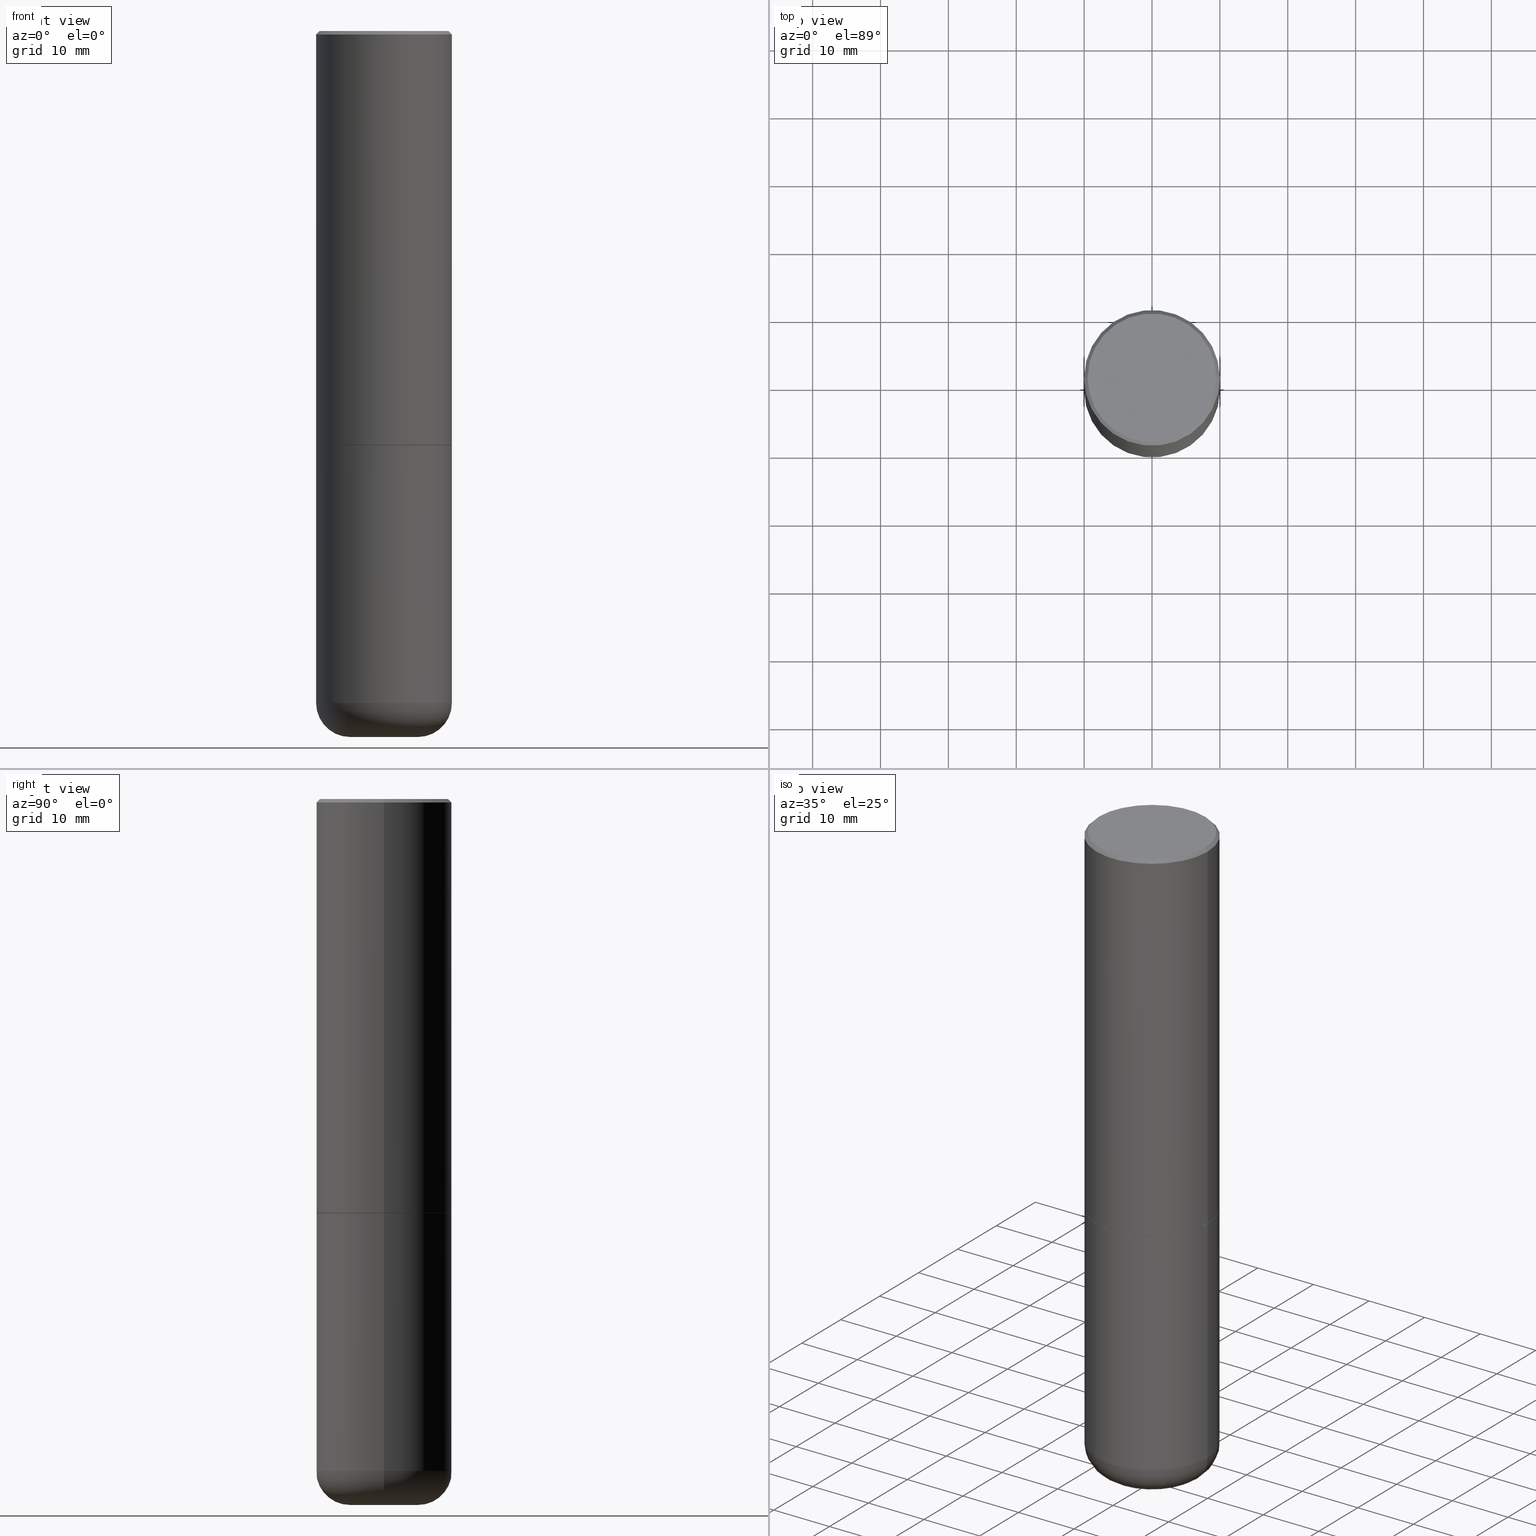
[diagram: canonical four-view strip — front | top / right | iso, engineering-drawing reading convention]
A machine part, canonical four-view strip (front | top / right | iso — engineering-drawing reading convention). The complete STEP part file that produces these views, byte-faithful:
ISO-10303-21;
HEADER;
FILE_DESCRIPTION (( 'STEP AP203' ),
    '1' );
FILE_NAME ('47060.STEP',
    '2024-03-05T16:22:17',
    ( '' ),
    ( '' ),
    'SwSTEP 2.0',
    'SolidWorks 2023',
    '' );
FILE_SCHEMA (( 'CONFIG_CONTROL_DESIGN' ));
ENDSEC;

DATA;
#1 = ORIENTED_EDGE ( 'NONE', *, *, #33, .T. ) ;
#2 = ORIENTED_EDGE ( 'NONE', *, *, #145, .T. ) ;
#3 = EDGE_LOOP ( 'NONE', ( #75, #335 ) ) ;
#4 = DATE_AND_TIME ( #44, #378 ) ;
#5 = CARTESIAN_POINT ( 'NONE',  ( 9.531459218987190195E-29, -1.360839766627504578E-14, -3.897600000000000620 ) ) ;
#6 = FACE_OUTER_BOUND ( 'NONE', #120, .T. ) ;
#7 = ORIENTED_EDGE ( 'NONE', *, *, #252, .T. ) ;
#8 = VECTOR ( 'NONE', #408, 39.37007874015748143 ) ;
#9 = CONICAL_SURFACE ( 'NONE', #330, 0.3926999999999999935, 0.7853981633972775267 ) ;
#10 = CARTESIAN_POINT ( 'NONE',  ( -0.3937000000000001609, 2.797406750687515575E-15, -1.936584745033357296E-29 ) ) ;
#11 = PERSON_AND_ORGANIZATION ( #346, #128 ) ;
#12 = DIRECTION ( 'NONE',  ( 1.000000000000000000, -6.982962677686266711E-15, 4.876176775795935793E-29 ) ) ;
#13 = DIRECTION ( 'NONE',  ( 0.7071067811865467956, -7.319954787623254468E-15, -0.7071067811865482389 ) ) ;
#14 = EDGE_LOOP ( 'NONE', ( #221, #2, #262, #351 ) ) ;
#15 = DATE_AND_TIME ( #81, #104 ) ;
#16 = ADVANCED_FACE ( 'NONE', ( #260 ), #267, .T. ) ;
#17 = AXIS2_PLACEMENT_3D ( 'NONE', #79, #168, #321 ) ;
#18 = VECTOR ( 'NONE', #338, 39.37007874015748143 ) ;
#19 = CARTESIAN_POINT ( 'NONE',  ( -0.3937000000000000499, -8.199362874132856734E-15, -2.401600000000000179 ) ) ;
#20 = DIRECTION ( 'NONE',  ( -2.445468806185136597E-29, 3.491481338843145583E-15, 1.000000000000000000 ) ) ;
#21 = DIRECTION ( 'NONE',  ( 2.445468806185136597E-29, -3.491481338843145583E-15, -1.000000000000000000 ) ) ;
#22 = APPLICATION_PROTOCOL_DEFINITION ( 'international standard', 'config_control_design', 1994, #144 ) ;
#23 = VERTEX_POINT ( 'NONE', #234 ) ;
#24 = DIRECTION ( 'NONE',  ( -2.445468806185136877E-29, 3.491481338843145188E-15, 1.000000000000000000 ) ) ;
#25 = VECTOR ( 'NONE', #24, 39.37007874015748143 ) ;
#26 = ORIENTED_EDGE ( 'NONE', *, *, #171, .F. ) ;
#27 = CC_DESIGN_APPROVAL ( #60, ( #66 ) ) ;
#28 = ORIENTED_EDGE ( 'NONE', *, *, #214, .F. ) ;
#29 = ORIENTED_EDGE ( 'NONE', *, *, #392, .T. ) ;
#30 = DIRECTION ( 'NONE',  ( -1.000000000000000000, 6.982962677686265922E-15, -4.876176775795935793E-29 ) ) ;
#31 = DIRECTION ( 'NONE',  ( -2.445468806185136597E-29, 3.491481338843145583E-15, 1.000000000000000000 ) ) ;
#32 = APPROVAL_STATUS ( 'not_yet_approved' ) ;
#33 = EDGE_CURVE ( 'NONE', #280, #196, #186, .T. ) ;
#34 = PRODUCT_DEFINITION ( 'UNKNOWN', '', #286, #68 ) ;
#35 = ORIENTED_EDGE ( 'NONE', *, *, #353, .F. ) ;
#36 = TOROIDAL_SURFACE ( 'NONE', #97, 0.1968000000000000305, 0.1968999999999998807 ) ;
#37 = COORDINATED_UNIVERSAL_TIME_OFFSET ( 5, 0, .BEHIND. ) ;
#38 = EDGE_CURVE ( 'NONE', #67, #43, #109, .T. ) ;
#39 = ORIENTED_EDGE ( 'NONE', *, *, #55, .T. ) ;
#40 = DIRECTION ( 'NONE',  ( -2.445468806185136597E-29, 3.491481338843145583E-15, 1.000000000000000000 ) ) ;
#41 = LINE ( 'NONE', #52, #345 ) ;
#42 = CARTESIAN_POINT ( 'NONE',  ( 0.000000000000000000, 0.000000000000000000, 0.000000000000000000 ) ) ;
#43 = VERTEX_POINT ( 'NONE', #245 ) ;
#44 = CALENDAR_DATE ( 2024, 5, 3 ) ;
#45 = PLANE ( 'NONE',  #249 ) ;
#46 = VERTEX_POINT ( 'NONE', #19 ) ;
#47 = LINE ( 'NONE', #181, #165 ) ;
#48 = DIRECTION ( 'NONE',  ( 2.438088387897960049E-29, -3.491481338843145188E-15, -1.000000000000000000 ) ) ;
#49 = CONICAL_SURFACE ( 'NONE', #223, 0.3926999999999999935, 0.7853981633972775267 ) ;
#50 = TOROIDAL_SURFACE ( 'NONE', #410, 0.1968000000000000305, 0.1968999999999998807 ) ;
#51 = AXIS2_PLACEMENT_3D ( 'NONE', #393, #364, #290 ) ;
#52 = CARTESIAN_POINT ( 'NONE',  ( -0.3926999999999999935, -5.594840260035786640E-15, -2.401600000000000623 ) ) ;
#53 = CARTESIAN_POINT ( 'NONE',  ( 1.001297202692504215E-28, -1.429587034189326149E-14, -4.094500000000000028 ) ) ;
#54 = DIRECTION ( 'NONE',  ( -2.445468806185136597E-29, 3.491481338843145583E-15, 1.000000000000000000 ) ) ;
#55 = EDGE_CURVE ( 'NONE', #231, #182, #302, .T. ) ;
#56 = AXIS2_PLACEMENT_3D ( 'NONE', #332, #402, #12 ) ;
#57 = DIRECTION ( 'NONE',  ( 1.000000000000000000, -6.982962677686269077E-15, 4.883557194083114022E-29 ) ) ;
#58 = CARTESIAN_POINT ( 'NONE',  ( 9.531459218987190195E-29, -1.360839766627504578E-14, -3.897600000000000620 ) ) ;
#59 = FACE_OUTER_BOUND ( 'NONE', #362, .T. ) ;
#60 = APPROVAL ( #412, 'UNSPECIFIED' ) ;
#61 = CARTESIAN_POINT ( 'NONE',  ( 4.890937612370294178E-31, -6.982962677686321191E-17, -0.02000000000000008715 ) ) ;
#62 = DIRECTION ( 'NONE',  ( 1.000000000000000000, -6.982962677686265133E-15, 0.000000000000000000 ) ) ;
#63 = CARTESIAN_POINT ( 'NONE',  ( -0.3937000000000003830, -1.428333113714341032E-15, -2.400600000000000289 ) ) ;
#64 = EDGE_LOOP ( 'NONE', ( #270, #228, #157, #314 ) ) ;
#65 = CIRCLE ( 'NONE', #217, 0.3937000000000002720 ) ;
#66 = SECURITY_CLASSIFICATION ( '', '', #389 ) ;
#67 = VERTEX_POINT ( 'NONE', #403 ) ;
#68 = DESIGN_CONTEXT ( 'detailed design', #167, 'design' ) ;
#69 = PLANE ( 'NONE',  #348 ) ;
#70 = AXIS2_PLACEMENT_3D ( 'NONE', #344, #366, #340 ) ;
#71 = DIRECTION ( 'NONE',  ( -2.445468806185136877E-29, 3.491481338843145188E-15, 1.000000000000000000 ) ) ;
#72 = ORIENTED_EDGE ( 'NONE', *, *, #313, .F. ) ;
#73 = UNCERTAINTY_MEASURE_WITH_UNIT (LENGTH_MEASURE( 1.000000000000000082E-05 ), #247, 'distance_accuracy_value', 'NONE');
#74 = VERTEX_POINT ( 'NONE', #63 ) ;
#75 = ORIENTED_EDGE ( 'NONE', *, *, #96, .F. ) ;
#76 = CYLINDRICAL_SURFACE ( 'NONE', #363, 0.3937000000000000499 ) ;
#77 = AXIS2_PLACEMENT_3D ( 'NONE', #42, #185, #129 ) ;
#78 = PERSON_AND_ORGANIZATION_ROLE ( 'creator' ) ;
#79 = CARTESIAN_POINT ( 'NONE',  ( 9.531459218987190195E-29, -1.360839766627504578E-14, -3.897600000000000620 ) ) ;
#80 = EDGE_CURVE ( 'NONE', #256, #23, #142, .T. ) ;
#81 = CALENDAR_DATE ( 2024, 5, 3 ) ;
#82 = ORIENTED_EDGE ( 'NONE', *, *, #240, .T. ) ;
#83 = EDGE_LOOP ( 'NONE', ( #414, #184, #39, #219 ) ) ;
#84 = APPROVAL_DATE_TIME ( #4, #305 ) ;
#85 = ORIENTED_EDGE ( 'NONE', *, *, #328, .F. ) ;
#86 = DIRECTION ( 'NONE',  ( -2.445468806185136597E-29, 3.491481338843145583E-15, 1.000000000000000000 ) ) ;
#87 = ORIENTED_EDGE ( 'NONE', *, *, #152, .F. ) ;
#88 = CC_DESIGN_SECURITY_CLASSIFICATION ( #66, ( #286 ) ) ;
#89 = EDGE_CURVE ( 'NONE', #163, #231, #401, .T. ) ;
#90 = ORIENTED_EDGE ( 'NONE', *, *, #220, .T. ) ;
#91 = DIRECTION ( 'NONE',  ( 1.000000000000000000, -6.982962677686265922E-15, 0.000000000000000000 ) ) ;
#92 = VECTOR ( 'NONE', #71, 39.37007874015748143 ) ;
#93 = CONICAL_SURFACE ( 'NONE', #281, 0.3937000000000000499, 0.7853981633974472798 ) ;
#94 = CARTESIAN_POINT ( 'NONE',  ( 0.000000000000000000, 0.000000000000000000, 0.000000000000000000 ) ) ;
#95 = PERSON_AND_ORGANIZATION ( #346, #128 ) ;
#96 = EDGE_CURVE ( 'NONE', #383, #280, #400, .T. ) ;
#97 = AXIS2_PLACEMENT_3D ( 'NONE', #5, #146, #298 ) ;
#98 = APPROVAL_DATE_TIME ( #133, #60 ) ;
#99 = EDGE_CURVE ( 'NONE', #108, #172, #177, .T. ) ;
#100 = DIRECTION ( 'NONE',  ( 1.000000000000000000, -6.982962677686265922E-15, 0.000000000000000000 ) ) ;
#101 = CARTESIAN_POINT ( 'NONE',  ( 5.873037884934224349E-29, -8.385141583365698841E-15, -2.401600000000000179 ) ) ;
#102 = ADVANCED_BREP_SHAPE_REPRESENTATION ( '47060', ( #242, #377, #224 ), #239 ) ;
#103 = CIRCLE ( 'NONE', #17, 0.3937000000000000499 ) ;
#104 = LOCAL_TIME ( 11, 22, 17.00000000000000000, #359 ) ;
#105 = CYLINDRICAL_SURFACE ( 'NONE', #77, 0.3937000000000000499 ) ;
#106 = ORIENTED_EDGE ( 'NONE', *, *, #304, .T. ) ;
#107 = CARTESIAN_POINT ( 'NONE',  ( 5.873037884934225470E-29, -8.385141583365700419E-15, -2.401600000000000623 ) ) ;
#108 = VERTEX_POINT ( 'NONE', #337 ) ;
#109 = LINE ( 'NONE', #160, #25 ) ;
#110 = DIRECTION ( 'NONE',  ( 1.000000000000000000, -6.982962677686268288E-15, 0.000000000000000000 ) ) ;
#111 = FACE_OUTER_BOUND ( 'NONE', #179, .T. ) ;
#112 = DIRECTION ( 'NONE',  ( -2.445468806185136597E-29, 3.491481338843145583E-15, 1.000000000000000000 ) ) ;
#113 = PERSON_AND_ORGANIZATION_ROLE ( 'classification_officer' ) ;
#114 = ADVANCED_FACE ( 'NONE', ( #59 ), #418, .T. ) ;
#115 = FACE_OUTER_BOUND ( 'NONE', #199, .T. ) ;
#116 = AXIS2_PLACEMENT_3D ( 'NONE', #61, #158, #100 ) ;
#117 = ORIENTED_EDGE ( 'NONE', *, *, #99, .F. ) ;
#118 = ADVANCED_FACE ( 'NONE', ( #404 ), #45, .F. ) ;
#119 = FACE_OUTER_BOUND ( 'NONE', #349, .T. ) ;
#120 = EDGE_LOOP ( 'NONE', ( #209, #7, #288, #237 ) ) ;
#121 = FACE_OUTER_BOUND ( 'NONE', #236, .T. ) ;
#122 = AXIS2_PLACEMENT_3D ( 'NONE', #387, #112, #62 ) ;
#123 = CARTESIAN_POINT ( 'NONE',  ( -0.3936999999999999389, -1.081099091558753178E-14, -3.897600000000000620 ) ) ;
#124 = FACE_OUTER_BOUND ( 'NONE', #14, .T. ) ;
#125 =( LENGTH_UNIT ( ) NAMED_UNIT ( * ) SI_UNIT ( $, .METRE. ) );
#126 = DIRECTION ( 'NONE',  ( 1.000000000000000000, -6.982962677686269077E-15, 0.000000000000000000 ) ) ;
#127 = AXIS2_PLACEMENT_3D ( 'NONE', #58, #54, #213 ) ;
#128 = ORGANIZATION ( 'UNSPECIFIED', 'UNSPECIFIED', '' ) ;
#129 = DIRECTION ( 'NONE',  ( 1.000000000000000000, -6.982962677686265922E-15, 4.876176775795935793E-29 ) ) ;
#130 = ORIENTED_EDGE ( 'NONE', *, *, #304, .F. ) ;
#131 = AXIS2_PLACEMENT_3D ( 'NONE', #273, #336, #154 ) ;
#132 = CC_DESIGN_APPROVAL ( #305, ( #286 ) ) ;
#133 = DATE_AND_TIME ( #164, #254 ) ;
#134 = CC_DESIGN_PERSON_AND_ORGANIZATION_ASSIGNMENT ( #341, #375, ( #312 ) ) ;
#135 = ORIENTED_EDGE ( 'NONE', *, *, #80, .F. ) ;
#136 = CIRCLE ( 'NONE', #283, 0.1968999999999999084 ) ;
#137 = DIRECTION ( 'NONE',  ( -2.445468806185136597E-29, 3.491481338843145583E-15, 1.000000000000000000 ) ) ;
#138 = PERSON_AND_ORGANIZATION ( #346, #128 ) ;
#139 = CARTESIAN_POINT ( 'NONE',  ( 1.001297202692504215E-28, -1.429587034189326149E-14, -4.094500000000000028 ) ) ;
#140 = DIRECTION ( 'NONE',  ( 1.000000000000000000, -6.982962677686266711E-15, 4.876176775795935793E-29 ) ) ;
#141 = DIRECTION ( 'NONE',  ( -2.445468806185136597E-29, 3.491481338843145583E-15, 1.000000000000000000 ) ) ;
#142 = CIRCLE ( 'NONE', #159, 0.3926999999999999935 ) ;
#143 = COORDINATED_UNIVERSAL_TIME_OFFSET ( 5, 0, .BEHIND. ) ;
#144 = APPLICATION_CONTEXT ( 'configuration controlled 3d designs of mechanical parts and assemblies' ) ;
#145 = EDGE_CURVE ( 'NONE', #196, #46, #175, .T. ) ;
#146 = DIRECTION ( 'NONE',  ( -2.445468806185136597E-29, 3.491481338843145583E-15, 1.000000000000000000 ) ) ;
#147 = DIRECTION ( 'NONE',  ( -2.445468806185136877E-29, 3.491481338843145188E-15, 1.000000000000000000 ) ) ;
#148 = EDGE_CURVE ( 'NONE', #196, #67, #103, .T. ) ;
#149 = DIRECTION ( 'NONE',  ( -1.000000000000000000, 6.982962677686265922E-15, 0.000000000000000000 ) ) ;
#150 = VECTOR ( 'NONE', #227, 39.37007874015748143 ) ;
#151 = CARTESIAN_POINT ( 'NONE',  ( 0.3937000000000001609, -2.749192406205084400E-15, 1.919750796630860732E-29 ) ) ;
#152 = EDGE_CURVE ( 'NONE', #23, #256, #200, .T. ) ;
#153 = ADVANCED_FACE ( 'NONE', ( #293 ), #50, .T. ) ;
#154 = DIRECTION ( 'NONE',  ( 1.000000000000000000, -6.982962677686265133E-15, 0.000000000000000000 ) ) ;
#155 = DIRECTION ( 'NONE',  ( 1.000000000000000000, -6.982962677686265922E-15, 0.000000000000000000 ) ) ;
#156 = DIRECTION ( 'NONE',  ( 1.000000000000000000, -6.982962677686265922E-15, 0.000000000000000000 ) ) ;
#157 = ORIENTED_EDGE ( 'NONE', *, *, #89, .T. ) ;
#158 = DIRECTION ( 'NONE',  ( -2.445468806185136597E-29, 3.491481338843145583E-15, 1.000000000000000000 ) ) ;
#159 = AXIS2_PLACEMENT_3D ( 'NONE', #301, #373, #282 ) ;
#160 = CARTESIAN_POINT ( 'NONE',  ( 0.3937000000000000499, -2.749192406205083217E-15, 1.919750796630860172E-29 ) ) ;
#161 = ADVANCED_FACE ( 'NONE', ( #6 ), #215, .T. ) ;
#162 = ORIENTED_EDGE ( 'NONE', *, *, #96, .T. ) ;
#163 = VERTEX_POINT ( 'NONE', #339 ) ;
#164 = CALENDAR_DATE ( 2024, 5, 3 ) ;
#165 = VECTOR ( 'NONE', #13, 39.37007874015748143 ) ;
#166 = APPROVAL_ROLE ( '' ) ;
#167 = APPLICATION_CONTEXT ( 'configuration controlled 3d designs of mechanical parts and assemblies' ) ;
#168 = DIRECTION ( 'NONE',  ( -2.445468806185136597E-29, 3.491481338843145583E-15, 1.000000000000000000 ) ) ;
#169 = ORIENTED_EDGE ( 'NONE', *, *, #220, .F. ) ;
#170 = AXIS2_PLACEMENT_3D ( 'NONE', #274, #333, #155 ) ;
#171 = EDGE_CURVE ( 'NONE', #46, #43, #294, .T. ) ;
#172 = VERTEX_POINT ( 'NONE', #275 ) ;
#173 = DIRECTION ( 'NONE',  ( 1.000000000000000000, -6.982962677686268288E-15, 0.000000000000000000 ) ) ;
#174 = DIRECTION ( 'NONE',  ( 2.445468806185136597E-29, -3.491481338843145583E-15, -1.000000000000000000 ) ) ;
#175 = LINE ( 'NONE', #356, #92 ) ;
#176 = CARTESIAN_POINT ( 'NONE',  ( -0.1968000000000000305, -1.221004956229916800E-14, -3.897600000000000620 ) ) ;
#177 = CIRCLE ( 'NONE', #70, 0.3736999999999997546 ) ;
#178 = DIRECTION ( 'NONE',  ( -1.000000000000000000, 6.982962677686265922E-15, -4.876176775795935793E-29 ) ) ;
#179 = EDGE_LOOP ( 'NONE', ( #255, #322, #193, #26 ) ) ;
#180 =( NAMED_UNIT ( * ) SI_UNIT ( $, .STERADIAN. ) SOLID_ANGLE_UNIT ( ) );
#181 = CARTESIAN_POINT ( 'NONE',  ( 0.3937000000000000499, -2.770807688499515734E-15, -0.02000000000000008715 ) ) ;
#182 = VERTEX_POINT ( 'NONE', #266 ) ;
#183 = CARTESIAN_POINT ( 'NONE',  ( 0.1968000000000000305, -1.498264472124370230E-14, -3.897600000000000620 ) ) ;
#184 = ORIENTED_EDGE ( 'NONE', *, *, #353, .T. ) ;
#185 = DIRECTION ( 'NONE',  ( -2.445468806185136597E-29, 3.491481338843145583E-15, 1.000000000000000000 ) ) ;
#186 = CIRCLE ( 'NONE', #370, 0.1968999999999999084 ) ;
#187 = AXIS2_PLACEMENT_3D ( 'NONE', #139, #258, #230 ) ;
#188 = CARTESIAN_POINT ( 'NONE',  ( 5.870592416128038746E-29, -8.381650102026855834E-15, -2.400600000000000289 ) ) ;
#189 = CARTESIAN_POINT ( 'NONE',  ( 4.890937612370294178E-31, -6.982962677686321191E-17, -0.02000000000000008715 ) ) ;
#190 = DIRECTION ( 'NONE',  ( 0.000000000000000000, 0.000000000000000000, 1.000000000000000000 ) ) ;
#191 = ORIENTED_EDGE ( 'NONE', *, *, #152, .T. ) ;
#192 = EDGE_CURVE ( 'NONE', #67, #196, #225, .T. ) ;
#193 = ORIENTED_EDGE ( 'NONE', *, *, #38, .T. ) ;
#194 = APPROVAL ( #32, 'UNSPECIFIED' ) ;
#195 = CLOSED_SHELL ( 'NONE', ( #291, #161, #367, #114, #16, #406, #118, #384 ) ) ;
#196 = VERTEX_POINT ( 'NONE', #123 ) ;
#197 = SHAPE_DEFINITION_REPRESENTATION ( #248, #102 ) ;
#198 = DIRECTION ( 'NONE',  ( 2.438088387897960049E-29, -3.491481338843145188E-15, -1.000000000000000000 ) ) ;
#199 = EDGE_LOOP ( 'NONE', ( #162, #1, #311, #130 ) ) ;
#200 = CIRCLE ( 'NONE', #381, 0.3926999999999999935 ) ;
#201 = FACE_OUTER_BOUND ( 'NONE', #83, .T. ) ;
#202 = DIRECTION ( 'NONE',  ( 1.000000000000000000, -6.982962677686265922E-15, 4.876176775795935793E-29 ) ) ;
#203 = APPROVAL_STATUS ( 'not_yet_approved' ) ;
#204 = FACE_OUTER_BOUND ( 'NONE', #3, .T. ) ;
#205 = PERSON_AND_ORGANIZATION ( #346, #128 ) ;
#206 = CIRCLE ( 'NONE', #309, 0.3937000000000002720 ) ;
#207 = APPROVAL_PERSON_ORGANIZATION ( #352, #305, #289 ) ;
#208 = DIRECTION ( 'NONE',  ( 1.000000000000000000, -6.982962677686268288E-15, 0.000000000000000000 ) ) ;
#209 = ORIENTED_EDGE ( 'NONE', *, *, #214, .T. ) ;
#210 = APPROVAL_ROLE ( '' ) ;
#211 = CARTESIAN_POINT ( 'NONE',  ( 0.3926999999999999935, -1.112735102689309762E-14, -2.401600000000000623 ) ) ;
#212 = CARTESIAN_POINT ( 'NONE',  ( 5.870592416128038746E-29, -8.381650102026855834E-15, -2.400600000000000289 ) ) ;
#213 = DIRECTION ( 'NONE',  ( 1.000000000000000000, -6.982962677686267499E-15, 0.000000000000000000 ) ) ;
#214 = EDGE_CURVE ( 'NONE', #163, #74, #65, .T. ) ;
#215 = CYLINDRICAL_SURFACE ( 'NONE', #56, 0.3937000000000001609 ) ;
#216 = DIRECTION ( 'NONE',  ( -6.982962677686266711E-15, -1.000000000000000000, 3.491481338843145583E-15 ) ) ;
#217 = AXIS2_PLACEMENT_3D ( 'NONE', #188, #20, #156 ) ;
#218 = CARTESIAN_POINT ( 'NONE',  ( 1.001297202692504215E-28, -1.429587034189326149E-14, -4.094500000000000028 ) ) ;
#219 = ORIENTED_EDGE ( 'NONE', *, *, #413, .F. ) ;
#220 = EDGE_CURVE ( 'NONE', #23, #163, #397, .T. ) ;
#221 = ORIENTED_EDGE ( 'NONE', *, *, #192, .T. ) ;
#222 = DIRECTION ( 'NONE',  ( -2.445468806185136597E-29, 3.491481338843145583E-15, 1.000000000000000000 ) ) ;
#223 = AXIS2_PLACEMENT_3D ( 'NONE', #361, #86, #208 ) ;
#224 = AXIS2_PLACEMENT_3D ( 'NONE', #94, #190, #306 ) ;
#225 = CIRCLE ( 'NONE', #127, 0.3937000000000000499 ) ;
#226 = CIRCLE ( 'NONE', #243, 0.3736999999999997546 ) ;
#227 = DIRECTION ( 'NONE',  ( 0.7071067811864267805, -2.468850131080992517E-15, 0.7071067811866682540 ) ) ;
#228 = ORIENTED_EDGE ( 'NONE', *, *, #313, .T. ) ;
#229 = CARTESIAN_POINT ( 'NONE',  ( 5.873037884934225470E-29, -8.385141583365698841E-15, -2.401600000000000623 ) ) ;
#230 = DIRECTION ( 'NONE',  ( 1.000000000000000000, -6.982962677686269866E-15, 0.000000000000000000 ) ) ;
#231 = VERTEX_POINT ( 'NONE', #350 ) ;
#232 = CARTESIAN_POINT ( 'NONE',  ( -0.3937000000000000499, 2.679362779428219918E-15, -0.02000000000000008715 ) ) ;
#233 = CC_DESIGN_PERSON_AND_ORGANIZATION_ASSIGNMENT ( #11, #78, ( #286 ) ) ;
#234 = CARTESIAN_POINT ( 'NONE',  ( 0.3926999999999999935, -1.112735102689309762E-14, -2.401600000000000623 ) ) ;
#235 = CARTESIAN_POINT ( 'NONE',  ( 4.890937612370294178E-31, -6.982962677686321191E-17, -0.02000000000000008715 ) ) ;
#236 = EDGE_LOOP ( 'NONE', ( #386, #372 ) ) ;
#237 = ORIENTED_EDGE ( 'NONE', *, *, #89, .F. ) ;
#238 = PLANE ( 'NONE',  #51 ) ;
#239 =( GEOMETRIC_REPRESENTATION_CONTEXT ( 3 ) GLOBAL_UNCERTAINTY_ASSIGNED_CONTEXT ( ( #73 ) ) GLOBAL_UNIT_ASSIGNED_CONTEXT ( ( #247, #268, #180 ) ) REPRESENTATION_CONTEXT ( 'NONE', 'WORKASPACE' ) );
#240 = EDGE_CURVE ( 'NONE', #43, #46, #261, .T. ) ;
#241 = ADVANCED_FACE ( 'NONE', ( #379 ), #69, .F. ) ;
#242 = MANIFOLD_SOLID_BREP ( 'Body-Move/Copy2[1]', #354 ) ;
#243 = AXIS2_PLACEMENT_3D ( 'NONE', #251, #409, #415 ) ;
#244 = PRODUCT_RELATED_PRODUCT_CATEGORY ( 'detail', '', ( #312 ) ) ;
#245 = CARTESIAN_POINT ( 'NONE',  ( 0.3937000000000000499, -1.113433398957078206E-14, -2.401600000000000179 ) ) ;
#246 = MECHANICAL_CONTEXT ( 'NONE', #144, 'mechanical' ) ;
#247 =( CONVERSION_BASED_UNIT ( 'INCH', #369 ) LENGTH_UNIT ( ) NAMED_UNIT ( #368 ) );
#248 = PRODUCT_DEFINITION_SHAPE ( 'NONE', 'NONE',  #34 ) ;
#249 = AXIS2_PLACEMENT_3D ( 'NONE', #229, #324, #202 ) ;
#250 = ADVANCED_FACE ( 'NONE', ( #204 ), #326, .T. ) ;
#251 = CARTESIAN_POINT ( 'NONE',  ( -5.428027354543142984E-45, 7.749784485978325769E-31, 2.219626494852213988E-16 ) ) ;
#252 = EDGE_CURVE ( 'NONE', #74, #182, #297, .T. ) ;
#253 = AXIS2_PLACEMENT_3D ( 'NONE', #189, #21, #278 ) ;
#254 = LOCAL_TIME ( 11, 22, 17.00000000000000000, #365 ) ;
#255 = ORIENTED_EDGE ( 'NONE', *, *, #145, .F. ) ;
#256 = VERTEX_POINT ( 'NONE', #264 ) ;
#257 = PERSON_AND_ORGANIZATION_ROLE ( 'design_supplier' ) ;
#258 = DIRECTION ( 'NONE',  ( -2.445468806185136597E-29, 3.491481338843145583E-15, 1.000000000000000000 ) ) ;
#259 = CARTESIAN_POINT ( 'NONE',  ( 9.531459218987190195E-29, -1.360839766627504578E-14, -3.897600000000000620 ) ) ;
#260 = FACE_OUTER_BOUND ( 'NONE', #64, .T. ) ;
#261 = CIRCLE ( 'NONE', #122, 0.3937000000000000499 ) ;
#262 = ORIENTED_EDGE ( 'NONE', *, *, #240, .F. ) ;
#263 = DATE_AND_TIME ( #320, #355 ) ;
#264 = CARTESIAN_POINT ( 'NONE',  ( -0.3926999999999999935, -5.589541805687562660E-15, -2.401600000000000623 ) ) ;
#265 = COORDINATED_UNIVERSAL_TIME_OFFSET ( 5, 0, .BEHIND. ) ;
#266 = CARTESIAN_POINT ( 'NONE',  ( -0.3937000000000000499, 2.679362779428219918E-15, -0.02000000000000008715 ) ) ;
#267 = CYLINDRICAL_SURFACE ( 'NONE', #285, 0.3937000000000001609 ) ;
#268 =( NAMED_UNIT ( * ) PLANE_ANGLE_UNIT ( ) SI_UNIT ( $, .RADIAN. ) );
#269 = CARTESIAN_POINT ( 'NONE',  ( 0.000000000000000000, 0.000000000000000000, 0.000000000000000000 ) ) ;
#270 = ORIENTED_EDGE ( 'NONE', *, *, #252, .F. ) ;
#271 = PERSON_AND_ORGANIZATION ( #346, #128 ) ;
#272 = LINE ( 'NONE', #232, #18 ) ;
#273 = CARTESIAN_POINT ( 'NONE',  ( 5.873037884934224349E-29, -8.385141583365698841E-15, -2.401600000000000179 ) ) ;
#274 = CARTESIAN_POINT ( 'NONE',  ( 4.890937612370294178E-31, -6.982962677686321191E-17, -0.02000000000000008715 ) ) ;
#275 = CARTESIAN_POINT ( 'NONE',  ( 0.3736999999999997546, -2.667287895133366781E-15, 2.219626494852398384E-16 ) ) ;
#276 = DIRECTION ( 'NONE',  ( 1.000000000000000000, -6.982962677686269866E-15, 0.000000000000000000 ) ) ;
#277 = CC_DESIGN_PERSON_AND_ORGANIZATION_ASSIGNMENT ( #205, #113, ( #66 ) ) ;
#278 = DIRECTION ( 'NONE',  ( -1.000000000000000000, 6.982962677686265922E-15, 0.000000000000000000 ) ) ;
#279 = CIRCLE ( 'NONE', #116, 0.3937000000000000499 ) ;
#280 = VERTEX_POINT ( 'NONE', #396 ) ;
#281 = AXIS2_PLACEMENT_3D ( 'NONE', #235, #174, #149 ) ;
#282 = DIRECTION ( 'NONE',  ( 1.000000000000000000, -6.982962677686268288E-15, 0.000000000000000000 ) ) ;
#283 = AXIS2_PLACEMENT_3D ( 'NONE', #183, #216, #126 ) ;
#284 = ORIENTED_EDGE ( 'NONE', *, *, #80, .T. ) ;
#285 = AXIS2_PLACEMENT_3D ( 'NONE', #300, #137, #140 ) ;
#286 = PRODUCT_DEFINITION_FORMATION_WITH_SPECIFIED_SOURCE ( 'ANY', '', #312, .NOT_KNOWN. ) ;
#287 = CARTESIAN_POINT ( 'NONE',  ( 5.873037884934225470E-29, -8.385141583365700419E-15, -2.401600000000000623 ) ) ;
#288 = ORIENTED_EDGE ( 'NONE', *, *, #55, .F. ) ;
#289 = APPROVAL_ROLE ( '' ) ;
#290 = DIRECTION ( 'NONE',  ( -1.000000000000000000, 6.982962677686265922E-15, -4.876176775795935793E-29 ) ) ;
#291 = ADVANCED_FACE ( 'NONE', ( #119 ), #49, .T. ) ;
#292 = CALENDAR_DATE ( 2024, 5, 3 ) ;
#293 = FACE_OUTER_BOUND ( 'NONE', #325, .T. ) ;
#294 = CIRCLE ( 'NONE', #131, 0.3937000000000000499 ) ;
#295 = CIRCLE ( 'NONE', #187, 0.1968000000000000582 ) ;
#296 = DIRECTION ( 'NONE',  ( -0.7071067811864267805, 7.493145998869918709E-15, 0.7071067811866682540 ) ) ;
#297 = LINE ( 'NONE', #10, #405 ) ;
#298 = DIRECTION ( 'NONE',  ( 1.000000000000000000, -6.982962677686269077E-15, 4.883557194083114022E-29 ) ) ;
#299 = CC_DESIGN_PERSON_AND_ORGANIZATION_ASSIGNMENT ( #271, #360, ( #34 ) ) ;
#300 = CARTESIAN_POINT ( 'NONE',  ( 0.000000000000000000, 0.000000000000000000, 0.000000000000000000 ) ) ;
#301 = CARTESIAN_POINT ( 'NONE',  ( 5.873037884934225470E-29, -8.385141583365700419E-15, -2.401600000000000623 ) ) ;
#302 = CIRCLE ( 'NONE', #170, 0.3937000000000000499 ) ;
#303 = LOCAL_TIME ( 11, 22, 17.00000000000000000, #37 ) ;
#304 = EDGE_CURVE ( 'NONE', #383, #67, #136, .T. ) ;
#305 = APPROVAL ( #203, 'UNSPECIFIED' ) ;
#306 = DIRECTION ( 'NONE',  ( 1.000000000000000000, 0.000000000000000000, 0.000000000000000000 ) ) ;
#307 = ORIENTED_EDGE ( 'NONE', *, *, #310, .T. ) ;
#308 = APPLICATION_PROTOCOL_DEFINITION ( 'international standard', 'config_control_design', 1994, #167 ) ;
#309 = AXIS2_PLACEMENT_3D ( 'NONE', #212, #141, #91 ) ;
#310 = EDGE_CURVE ( 'NONE', #182, #231, #279, .T. ) ;
#311 = ORIENTED_EDGE ( 'NONE', *, *, #192, .F. ) ;
#312 = PRODUCT ( '47060', '47060', '', ( #246 ) ) ;
#313 = EDGE_CURVE ( 'NONE', #74, #163, #206, .T. ) ;
#314 = ORIENTED_EDGE ( 'NONE', *, *, #310, .F. ) ;
#315 = AXIS2_PLACEMENT_3D ( 'NONE', #53, #48, #178 ) ;
#316 = APPROVAL_DATE_TIME ( #15, #194 ) ;
#317 = ADVANCED_FACE ( 'NONE', ( #111 ), #76, .T. ) ;
#318 = DIRECTION ( 'NONE',  ( -2.445468806185136597E-29, 3.491481338843145583E-15, 1.000000000000000000 ) ) ;
#319 = EDGE_LOOP ( 'NONE', ( #87, #135 ) ) ;
#320 = CALENDAR_DATE ( 2024, 5, 3 ) ;
#321 = DIRECTION ( 'NONE',  ( 1.000000000000000000, -6.982962677686267499E-15, 0.000000000000000000 ) ) ;
#322 = ORIENTED_EDGE ( 'NONE', *, *, #148, .T. ) ;
#323 = DATE_AND_TIME ( #292, #303 ) ;
#324 = DIRECTION ( 'NONE',  ( -2.438088387897960049E-29, 3.491481338843145188E-15, 1.000000000000000000 ) ) ;
#325 = EDGE_LOOP ( 'NONE', ( #388, #29, #106, #374 ) ) ;
#326 = PLANE ( 'NONE',  #315 ) ;
#327 = ORIENTED_EDGE ( 'NONE', *, *, #413, .T. ) ;
#328 = EDGE_CURVE ( 'NONE', #256, #74, #41, .T. ) ;
#329 = PERSON_AND_ORGANIZATION ( #346, #128 ) ;
#330 = AXIS2_PLACEMENT_3D ( 'NONE', #107, #31, #110 ) ;
#331 = DIRECTION ( 'NONE',  ( 1.000000000000000000, -6.982962677686265922E-15, 4.876176775795935793E-29 ) ) ;
#332 = CARTESIAN_POINT ( 'NONE',  ( 0.000000000000000000, 0.000000000000000000, 0.000000000000000000 ) ) ;
#333 = DIRECTION ( 'NONE',  ( -2.445468806185136597E-29, 3.491481338843145583E-15, 1.000000000000000000 ) ) ;
#334 = APPROVAL_PERSON_ORGANIZATION ( #95, #194, #210 ) ;
#335 = ORIENTED_EDGE ( 'NONE', *, *, #392, .F. ) ;
#336 = DIRECTION ( 'NONE',  ( -2.445468806185136597E-29, 3.491481338843145583E-15, 1.000000000000000000 ) ) ;
#337 = CARTESIAN_POINT ( 'NONE',  ( -0.3736999999999997546, 2.644447966039789058E-15, 2.219626494852030085E-16 ) ) ;
#338 = DIRECTION ( 'NONE',  ( -0.7071067811865467956, 2.468850131082249172E-15, -0.7071067811865482389 ) ) ;
#339 = CARTESIAN_POINT ( 'NONE',  ( 0.3937000000000002720, -1.113084250823194063E-14, -2.400600000000000289 ) ) ;
#340 = DIRECTION ( 'NONE',  ( 1.000000000000000000, -6.982962677686266711E-15, 4.877734241229879050E-29 ) ) ;
#341 = PERSON_AND_ORGANIZATION ( #346, #128 ) ;
#342 = ORIENTED_EDGE ( 'NONE', *, *, #171, .T. ) ;
#343 = ADVANCED_FACE ( 'NONE', ( #115 ), #36, .T. ) ;
#344 = CARTESIAN_POINT ( 'NONE',  ( -5.428027354543142984E-45, 7.749784485978325769E-31, 2.219626494852213988E-16 ) ) ;
#345 = VECTOR ( 'NONE', #296, 39.37007874015748143 ) ;
#346 = PERSON ( 'UNSPECIFIED', 'UNSPECIFIED', 'UNSPECIFIED', ('UNSPECIFIED'), ('UNSPECIFIED'), ('UNSPECIFIED') ) ;
#347 = CC_DESIGN_PERSON_AND_ORGANIZATION_ASSIGNMENT ( #138, #257, ( #286 ) ) ;
#348 = AXIS2_PLACEMENT_3D ( 'NONE', #101, #198, #30 ) ;
#349 = EDGE_LOOP ( 'NONE', ( #191, #390, #28, #169 ) ) ;
#350 = CARTESIAN_POINT ( 'NONE',  ( 0.3937000000000000499, -2.770807688499515734E-15, -0.02000000000000008715 ) ) ;
#351 = ORIENTED_EDGE ( 'NONE', *, *, #38, .F. ) ;
#352 = PERSON_AND_ORGANIZATION ( #346, #128 ) ;
#353 = EDGE_CURVE ( 'NONE', #172, #231, #47, .T. ) ;
#354 = CLOSED_SHELL ( 'NONE', ( #411, #343, #241, #317, #153, #250 ) ) ;
#355 = LOCAL_TIME ( 11, 22, 17.00000000000000000, #143 ) ;
#356 = CARTESIAN_POINT ( 'NONE',  ( -0.3937000000000000499, 2.797406750687514786E-15, -1.936584745033356735E-29 ) ) ;
#357 = FACE_OUTER_BOUND ( 'NONE', #416, .T. ) ;
#358 = EDGE_LOOP ( 'NONE', ( #82, #342 ) ) ;
#359 = COORDINATED_UNIVERSAL_TIME_OFFSET ( 5, 0, .BEHIND. ) ;
#360 = PERSON_AND_ORGANIZATION_ROLE ( 'creator' ) ;
#361 = CARTESIAN_POINT ( 'NONE',  ( 5.873037884934225470E-29, -8.385141583365700419E-15, -2.401600000000000623 ) ) ;
#362 = EDGE_LOOP ( 'NONE', ( #35, #117, #327, #307 ) ) ;
#363 = AXIS2_PLACEMENT_3D ( 'NONE', #269, #318, #331 ) ;
#364 = DIRECTION ( 'NONE',  ( 2.438088387897960049E-29, -3.491481338843145188E-15, -1.000000000000000000 ) ) ;
#365 = COORDINATED_UNIVERSAL_TIME_OFFSET ( 5, 0, .BEHIND. ) ;
#366 = DIRECTION ( 'NONE',  ( -2.445468806185136597E-29, 3.491481338843145583E-15, 1.000000000000000000 ) ) ;
#367 = ADVANCED_FACE ( 'NONE', ( #201 ), #93, .T. ) ;
#368 = DIMENSIONAL_EXPONENTS ( 1.000000000000000000, 0.000000000000000000, 0.000000000000000000, 0.000000000000000000, 0.000000000000000000, 0.000000000000000000, 0.000000000000000000 ) ;
#369 = LENGTH_MEASURE_WITH_UNIT ( LENGTH_MEASURE( 0.02539999999999999897 ), #125 );
#370 = AXIS2_PLACEMENT_3D ( 'NONE', #176, #395, #385 ) ;
#371 = APPROVAL_PERSON_ORGANIZATION ( #329, #60, #166 ) ;
#372 = ORIENTED_EDGE ( 'NONE', *, *, #417, .T. ) ;
#373 = DIRECTION ( 'NONE',  ( -2.445468806185136597E-29, 3.491481338843145583E-15, 1.000000000000000000 ) ) ;
#374 = ORIENTED_EDGE ( 'NONE', *, *, #148, .F. ) ;
#375 = PERSON_AND_ORGANIZATION_ROLE ( 'design_owner' ) ;
#376 = AXIS2_PLACEMENT_3D ( 'NONE', #218, #222, #276 ) ;
#377 = MANIFOLD_SOLID_BREP ( 'Body-Move/Copy2[2]', #195 ) ;
#378 = LOCAL_TIME ( 11, 22, 17.00000000000000000, #265 ) ;
#379 = FACE_OUTER_BOUND ( 'NONE', #358, .T. ) ;
#380 = CC_DESIGN_DATE_AND_TIME_ASSIGNMENT ( #323, #399, ( #34 ) ) ;
#381 = AXIS2_PLACEMENT_3D ( 'NONE', #287, #40, #173 ) ;
#382 = CC_DESIGN_APPROVAL ( #194, ( #34 ) ) ;
#383 = VERTEX_POINT ( 'NONE', #398 ) ;
#384 = ADVANCED_FACE ( 'NONE', ( #121 ), #238, .F. ) ;
#385 = DIRECTION ( 'NONE',  ( -1.000000000000000000, 7.105427357600995548E-15, 0.000000000000000000 ) ) ;
#386 = ORIENTED_EDGE ( 'NONE', *, *, #99, .T. ) ;
#387 = CARTESIAN_POINT ( 'NONE',  ( 5.873037884934224349E-29, -8.385141583365698841E-15, -2.401600000000000179 ) ) ;
#388 = ORIENTED_EDGE ( 'NONE', *, *, #33, .F. ) ;
#389 = SECURITY_CLASSIFICATION_LEVEL ( 'unclassified' ) ;
#390 = ORIENTED_EDGE ( 'NONE', *, *, #328, .T. ) ;
#391 = DIRECTION ( 'NONE',  ( -2.445468806185136597E-29, 3.491481338843145583E-15, 1.000000000000000000 ) ) ;
#392 = EDGE_CURVE ( 'NONE', #280, #383, #295, .T. ) ;
#393 = CARTESIAN_POINT ( 'NONE',  ( 2.609533152651355831E-15, 0.3736999999999997546, -1.193785251583072147E-15 ) ) ;
#394 = DATE_TIME_ROLE ( 'classification_date' ) ;
#395 = DIRECTION ( 'NONE',  ( 7.105427357601001859E-15, 1.000000000000000000, -3.491481338843145583E-15 ) ) ;
#396 = CARTESIAN_POINT ( 'NONE',  ( -0.1968000000000000582, -1.185425657675245696E-14, -4.094500000000000028 ) ) ;
#397 = LINE ( 'NONE', #211, #150 ) ;
#398 = CARTESIAN_POINT ( 'NONE',  ( 0.1968000000000000582, -1.567011739686191959E-14, -4.094500000000000028 ) ) ;
#399 = DATE_TIME_ROLE ( 'creation_date' ) ;
#400 = CIRCLE ( 'NONE', #376, 0.1968000000000000582 ) ;
#401 = LINE ( 'NONE', #151, #8 ) ;
#402 = DIRECTION ( 'NONE',  ( -2.445468806185136597E-29, 3.491481338843145583E-15, 1.000000000000000000 ) ) ;
#403 = CARTESIAN_POINT ( 'NONE',  ( 0.3936999999999999389, -1.635759007248013057E-14, -3.897600000000000620 ) ) ;
#404 = FACE_OUTER_BOUND ( 'NONE', #319, .T. ) ;
#405 = VECTOR ( 'NONE', #147, 39.37007874015748143 ) ;
#406 = ADVANCED_FACE ( 'NONE', ( #357 ), #9, .T. ) ;
#407 = CC_DESIGN_DATE_AND_TIME_ASSIGNMENT ( #263, #394, ( #66 ) ) ;
#408 = DIRECTION ( 'NONE',  ( -2.445468806185136877E-29, 3.491481338843145188E-15, 1.000000000000000000 ) ) ;
#409 = DIRECTION ( 'NONE',  ( -2.445468806185136597E-29, 3.491481338843145583E-15, 1.000000000000000000 ) ) ;
#410 = AXIS2_PLACEMENT_3D ( 'NONE', #259, #391, #57 ) ;
#411 = ADVANCED_FACE ( 'NONE', ( #124 ), #105, .T. ) ;
#412 = APPROVAL_STATUS ( 'not_yet_approved' ) ;
#413 = EDGE_CURVE ( 'NONE', #108, #182, #272, .T. ) ;
#414 = ORIENTED_EDGE ( 'NONE', *, *, #417, .F. ) ;
#415 = DIRECTION ( 'NONE',  ( 1.000000000000000000, -6.982962677686266711E-15, 4.877734241229879050E-29 ) ) ;
#416 = EDGE_LOOP ( 'NONE', ( #85, #284, #90, #72 ) ) ;
#417 = EDGE_CURVE ( 'NONE', #172, #108, #226, .T. ) ;
#418 = CONICAL_SURFACE ( 'NONE', #253, 0.3937000000000000499, 0.7853981633974472798 ) ;
ENDSEC;
END-ISO-10303-21;
